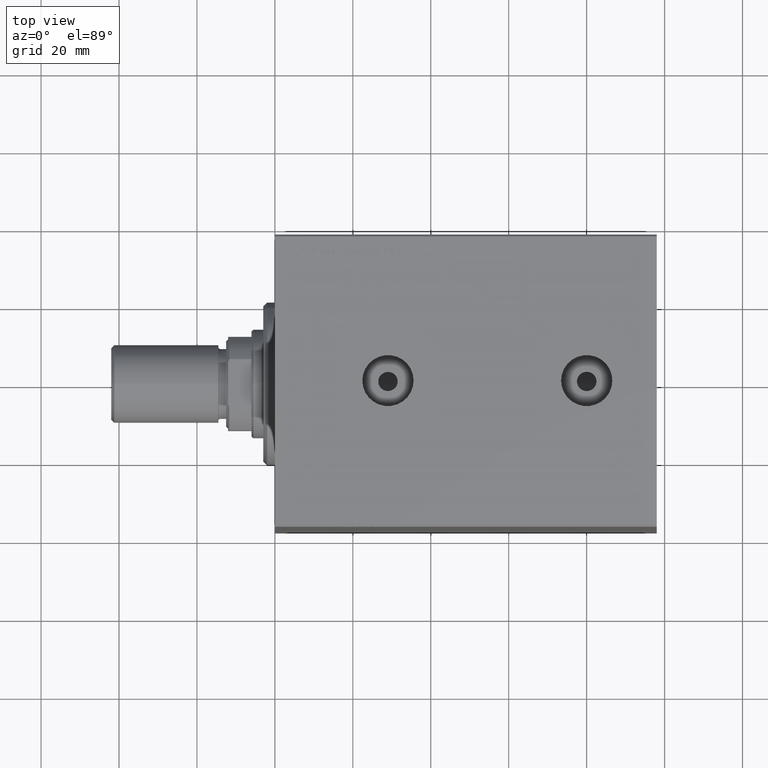
[diagram: clean part render]
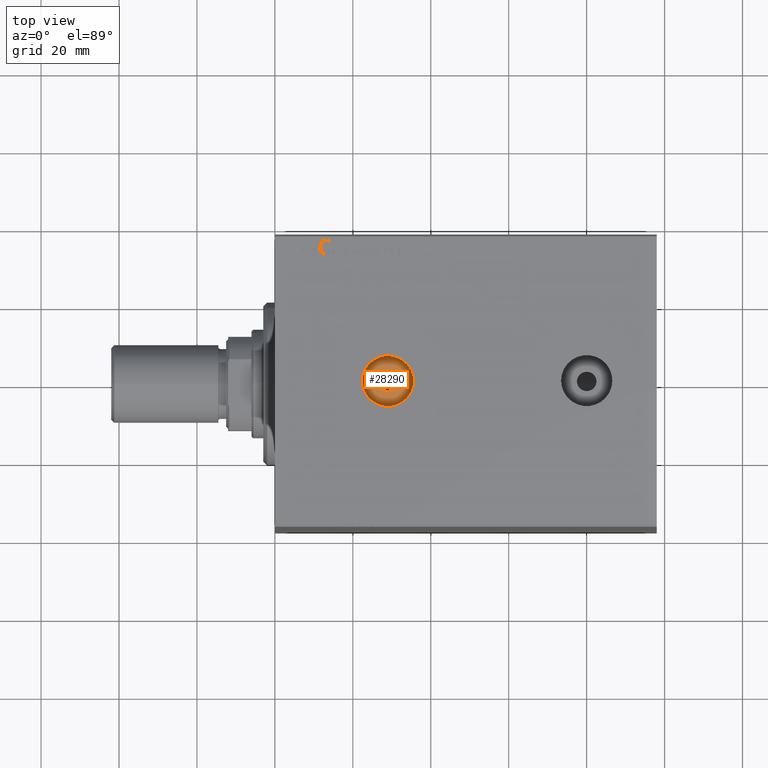
[diagram: same view with one face highlighted and labeled with its STEP entity id]
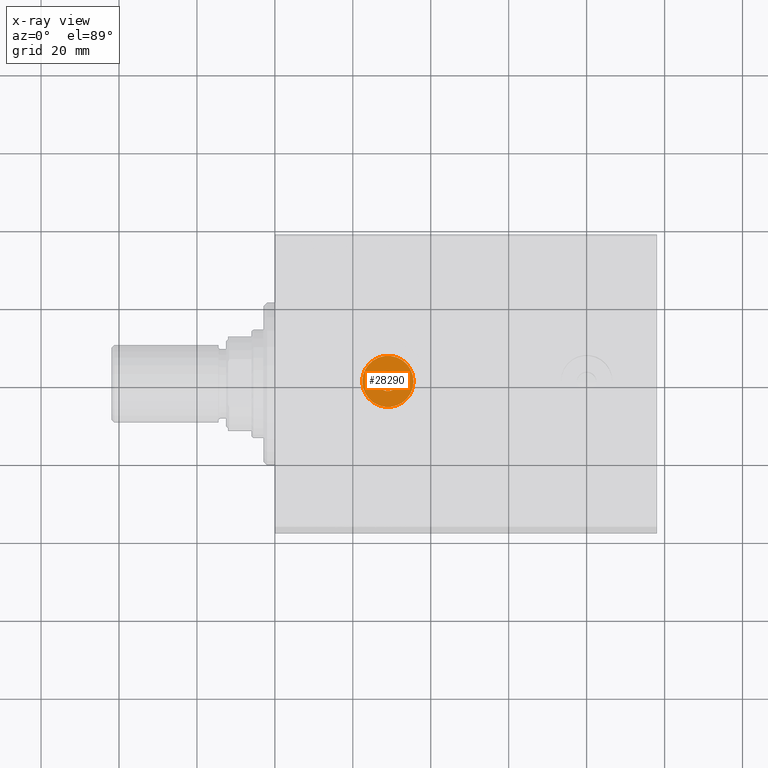
[diagram: x-ray of the same camera — body ghosted, the highlighted face saturated]
A machine part, top view. The second image highlights one B-rep face of the part: STEP entity #28290.
The next image is the same camera in x-ray: the body ghosted, the highlighted face saturated — about 0% of this face is hidden behind the body in this view.
In plain terms, the highlighted planar face has unit normal (0, 0, 1).
Its self-contained STEP definition (entity closure, byte-faithful):
#2015 = VERTEX_POINT ( 'NONE', #15329 ) ;
#2395 = EDGE_LOOP ( 'NONE', ( #20893, #43162 ) ) ;
#2972 = CIRCLE ( 'NONE', #21673, 6.579999999999999183 ) ;
#2982 = VERTEX_POINT ( 'NONE', #11948 ) ;
#3022 = DIRECTION ( 'NONE',  ( 0.000000000000000000, 0.000000000000000000, 1.000000000000000000 ) ) ;
#3163 = DIRECTION ( 'NONE',  ( 1.000000000000000000, 0.000000000000000000, 0.000000000000000000 ) ) ;
#3460 = CIRCLE ( 'NONE', #40773, 6.579999999999999183 ) ;
#5062 = FACE_BOUND ( 'NONE', #13435, .T. ) ;
#5282 = DIRECTION ( 'NONE',  ( 1.000000000000000000, 0.000000000000000000, -0.000000000000000000 ) ) ;
#6051 = EDGE_CURVE ( 'NONE', #32174, #2015, #14020, .T. ) ;
#7286 = CARTESIAN_POINT ( 'NONE',  ( 31.50000000000000000, -9.251858538542973800E-15, 36.74000000000000199 ) ) ;
#7671 = CIRCLE ( 'NONE', #36477, 2.499999999999998668 ) ;
#9178 = EDGE_CURVE ( 'NONE', #2015, #32174, #7671, .T. ) ;
#11358 = PLANE ( 'NONE',  #14240 ) ;
#11948 = CARTESIAN_POINT ( 'NONE',  ( 22.42000000000000171, -8.446040944704016336E-15, 36.74000000000000199 ) ) ;
#12143 = DIRECTION ( 'NONE',  ( 1.000000000000000000, 0.000000000000000000, 0.000000000000000000 ) ) ;
#12838 = CARTESIAN_POINT ( 'NONE',  ( 29.00000000000000000, -9.251858538542973800E-15, 36.74000000000000199 ) ) ;
#13435 = EDGE_LOOP ( 'NONE', ( #43601, #41329 ) ) ;
#13727 = DIRECTION ( 'NONE',  ( 0.000000000000000000, 0.000000000000000000, 1.000000000000000000 ) ) ;
#13947 = CARTESIAN_POINT ( 'NONE',  ( 29.00000000000000000, -9.251858538542973800E-15, 36.74000000000000199 ) ) ;
#14020 = CIRCLE ( 'NONE', #42833, 2.499999999999998668 ) ;
#14240 = AXIS2_PLACEMENT_3D ( 'NONE', #18799, #29372, #5282 ) ;
#15329 = CARTESIAN_POINT ( 'NONE',  ( 26.50000000000000355, -8.945696838756135929E-15, 36.74000000000000199 ) ) ;
#18799 = CARTESIAN_POINT ( 'NONE',  ( 29.00000000000000000, -9.251858538542973800E-15, 36.74000000000000199 ) ) ;
#20893 = ORIENTED_EDGE ( 'NONE', *, *, #40814, .T. ) ;
#21673 = AXIS2_PLACEMENT_3D ( 'NONE', #13947, #13727, #3163 ) ;
#22388 = FACE_OUTER_BOUND ( 'NONE', #2395, .T. ) ;
#22548 = EDGE_CURVE ( 'NONE', #2982, #25923, #3460, .T. ) ;
#25832 = CARTESIAN_POINT ( 'NONE',  ( 35.57999999999999829, -9.251858538542973800E-15, 36.74000000000000199 ) ) ;
#25923 = VERTEX_POINT ( 'NONE', #25832 ) ;
#26330 = DIRECTION ( 'NONE',  ( 0.000000000000000000, 0.000000000000000000, 1.000000000000000000 ) ) ;
#28290 = ADVANCED_FACE ( 'NONE', ( #5062, #22388 ), #11358, .T. ) ;
#29372 = DIRECTION ( 'NONE',  ( 0.000000000000000000, 0.000000000000000000, 1.000000000000000000 ) ) ;
#29941 = CARTESIAN_POINT ( 'NONE',  ( 29.00000000000000000, -9.251858538542973800E-15, 36.74000000000000199 ) ) ;
#30277 = CARTESIAN_POINT ( 'NONE',  ( 29.00000000000000000, -9.251858538542973800E-15, 36.74000000000000199 ) ) ;
#30619 = DIRECTION ( 'NONE',  ( 1.000000000000000000, 0.000000000000000000, 0.000000000000000000 ) ) ;
#32174 = VERTEX_POINT ( 'NONE', #7286 ) ;
#36477 = AXIS2_PLACEMENT_3D ( 'NONE', #12838, #36743, #30619 ) ;
#36743 = DIRECTION ( 'NONE',  ( 0.000000000000000000, 0.000000000000000000, 1.000000000000000000 ) ) ;
#40773 = AXIS2_PLACEMENT_3D ( 'NONE', #29941, #26330, #12143 ) ;
#40814 = EDGE_CURVE ( 'NONE', #25923, #2982, #2972, .T. ) ;
#40878 = DIRECTION ( 'NONE',  ( 1.000000000000000000, 0.000000000000000000, 0.000000000000000000 ) ) ;
#41329 = ORIENTED_EDGE ( 'NONE', *, *, #9178, .F. ) ;
#42833 = AXIS2_PLACEMENT_3D ( 'NONE', #30277, #3022, #40878 ) ;
#43162 = ORIENTED_EDGE ( 'NONE', *, *, #22548, .T. ) ;
#43601 = ORIENTED_EDGE ( 'NONE', *, *, #6051, .F. ) ;